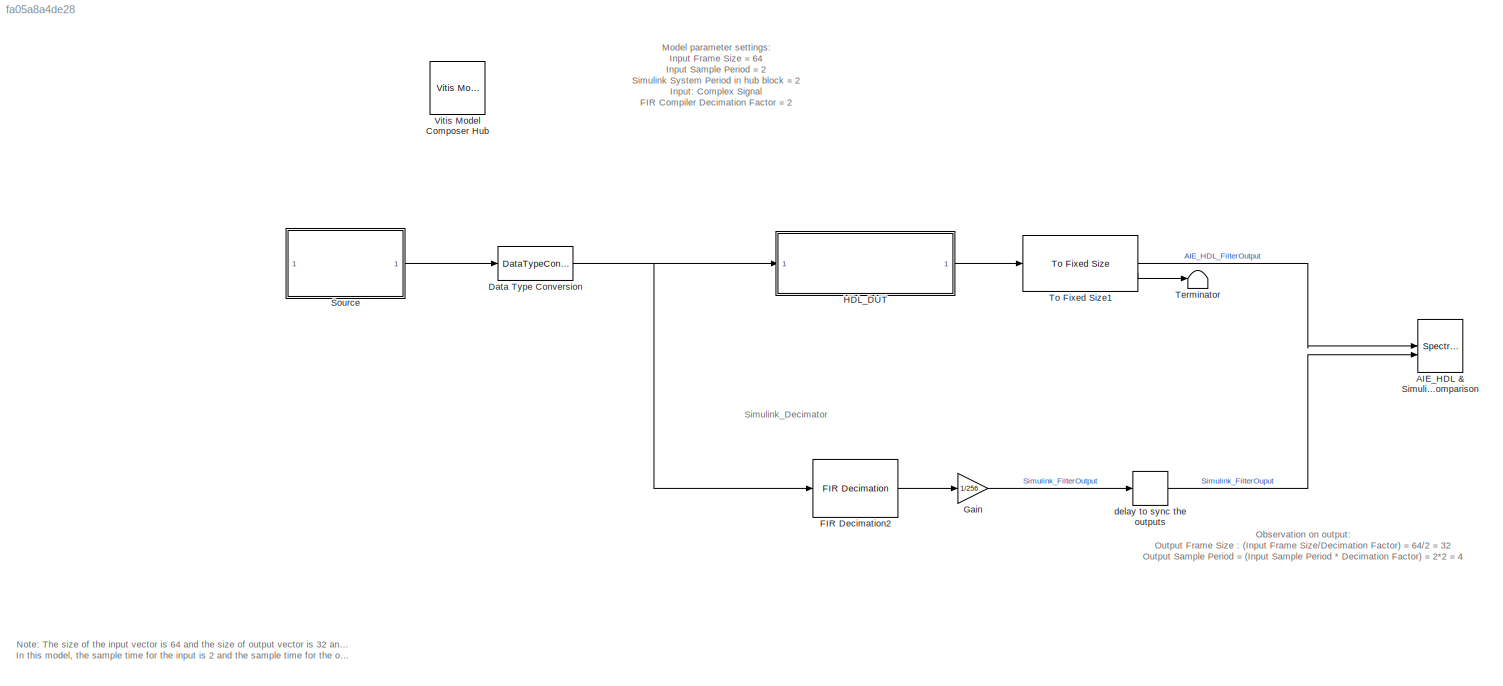
MODEL slx_fa05a8a4de28
KIND model
CONFIG AbsTol = auto
CONFIG EnableMultiTasking = off
CONFIG FixedStep = auto
CONFIG MaxStep = auto
CONFIG MinStep = auto
CONFIG RelTol = 1e-3
CONFIG SampleTimeConstraint = Unconstrained
CONFIG SolverName = VariableStepAuto
CONFIG StartTime = 0.0
CONFIG StopTime = 1000
BLOCK [SpectrumAnalyzer] AIE_HDL & Simulink Specrum_Comparison
  AllowFFTLengthLessThanSamplesPerUpdate = on
  AveragingMethod = Exponential
  ChannelNames = [""]
  DefaultConfigurationName = spbscopes.SpectrumAnalyzerBlockCfg
  NumInputPorts = 2
  ScopeSpecificationString = spbscopes.SpectrumAnalyzerBlockCfg('CurrentConfiguration', extmgr.ConfigurationSet(extmgr.Configuration('Core','General UI',true,'FigureColor',[0.12941     0.12941     0.12941]),extmgr.Configuration('Visuals','Spectrum',true,'Title','','YLabel','','MinYLim','-16.0622','MaxYLim','68.9529','Legend',true,'AxesProperties',struct('XGrid',{'on','on'},'YGrid',{'on','on'},'ZGrid',{'on','on'},'Color',{[0  ...<+2422ch>
  ShowLegend = on
  WasSavedAsWebScope = on
BLOCK [DataTypeConversion] Data Type Conversion
  OutDataTypeStr = int32
  RndMeth = Floor
  SaturateOnIntegerOverflow = off
BLOCK [Reference] FIR Decimation2  REF=dspmlti4/FIR
Decimation
  SourceBlock = dspmlti4/FIR\nDecimation
  SourceType = FIR Decimation
  UserDataPersistent = on
BLOCK [Gain] Gain
  Gain = 1/256
  OutDataTypeStr = Inherit: Same as input
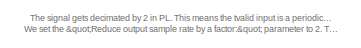
[diagram: HDL_DUT - part 1/3, top center region]
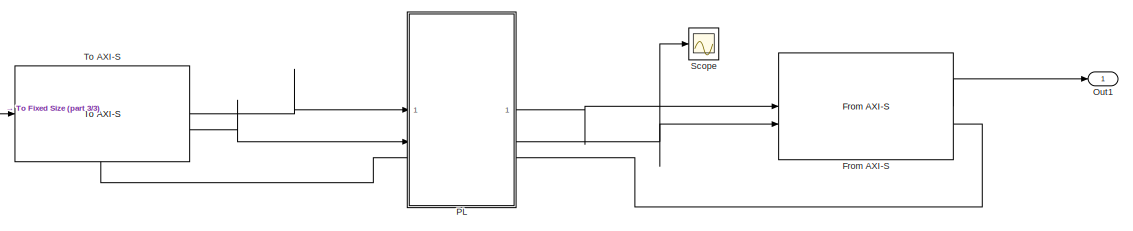
[diagram: HDL_DUT - part 2/3, bottom center region]
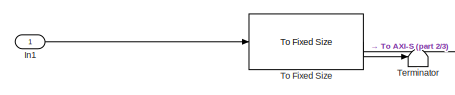
[diagram: HDL_DUT - part 3/3, bottom left region]
BLOCK [SubSystem] HDL_DUT
BLOCK [Reference] HDL_DUT/From AXI-S  REF=aieUtilities/From AXI-S
  SourceBlock = aieUtilities/From AXI-S
  SourceType = From AXI-S
BLOCK [Inport] HDL_DUT/In1
BLOCK [Outport] HDL_DUT/Out1
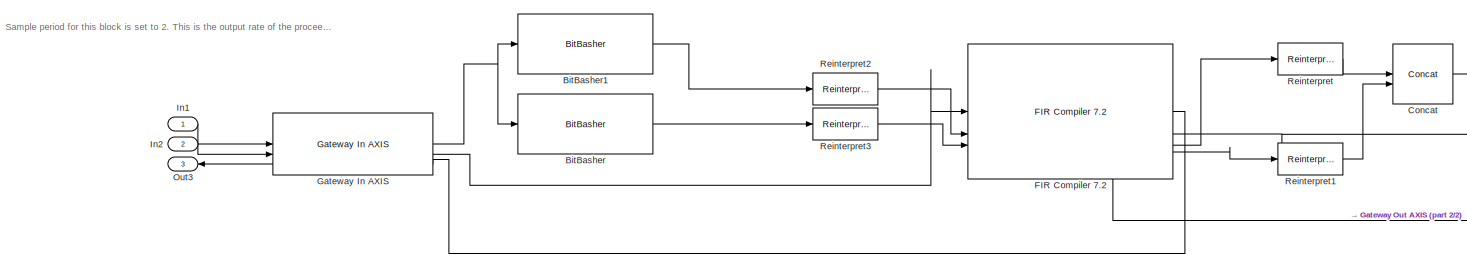
[diagram: HDL_DUT/PL - part 1/2, most of the canvas]
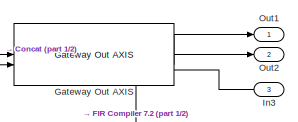
[diagram: HDL_DUT/PL - part 2/2, middle right region]
BLOCK [SubSystem] HDL_DUT/PL
  PortSchema = {"entries":[{"content":{"sides":[{"content":{"connectorIds":["In1","In2","Out3"]},"type":"ConnectorPlacement.EquallySpacedRectSide","uuid":"b9240e68-8c33-49ba-b00e-74953cef8815"},{"content":{"connectorIds":["Out1","Out2","In3"],"side":"RIGHT"},"type":"ConnectorPlacement.EquallySpacedRectSide","uuid":"ae9f69ab-13df-4ed6-8e03-b2ffeca92de6"},{"content":{"side":"TOP"},"type":"ConnectorPlacement.Equall...<+248ch>
BLOCK [Reference] HDL_DUT/PL/BitBasher  REF=hdlBasic/BitBasher
  SourceBlock = hdlBasic/BitBasher
  SourceType = BitBasher Block
BLOCK [Reference] HDL_DUT/PL/BitBasher1  REF=hdlBasic/BitBasher
  SourceBlock = hdlBasic/BitBasher
  SourceType = BitBasher Block
BLOCK [Reference] HDL_DUT/PL/Concat  REF=hdlBasic/Concat
  SourceBlock = hdlBasic/Concat
  SourceType = Bus Concatenator Block
BLOCK [Reference] HDL_DUT/PL/FIR Compiler 7.2  REF=hdlDSPIP/FIR Compiler 7.2 
  SourceBlock = hdlDSPIP/FIR Compiler 7.2
  SourceType = FIR Compiler 7.2 Block
BLOCK [Reference] HDL_DUT/PL/Gateway In AXIS  REF=hdlUtilities/Gateway In AXIS
  SourceBlock = hdlUtilities/Gateway In AXIS
  SourceType = Gateway In AXIS
BLOCK [Reference] HDL_DUT/PL/Gateway Out AXIS  REF=hdlUtilities/Gateway Out AXIS
  SourceBlock = hdlUtilities/Gateway Out AXIS
  SourceType = Gateway Out AXIS
BLOCK [Inport] HDL_DUT/PL/In1
BLOCK [Inport] HDL_DUT/PL/In2
  Port = 2
BLOCK [Inport] HDL_DUT/PL/In3
  Port = 3
BLOCK [Outport] HDL_DUT/PL/Out1
BLOCK [Outport] HDL_DUT/PL/Out2
  Port = 2
BLOCK [Outport] HDL_DUT/PL/Out3
  Port = 3
BLOCK [Reference] HDL_DUT/PL/Reinterpret  REF=hdlBasic/Reinterpret
  SourceBlock = hdlBasic/Reinterpret
  SourceType = Type Reinterpreter Block
BLOCK [Reference] HDL_DUT/PL/Reinterpret1  REF=hdlBasic/Reinterpret
  SourceBlock = hdlBasic/Reinterpret
  SourceType = Type Reinterpreter Block
BLOCK [Reference] HDL_DUT/PL/Reinterpret2  REF=hdlBasic/Reinterpret
  SourceBlock = hdlBasic/Reinterpret
  SourceType = Type Reinterpreter Block
BLOCK [Reference] HDL_DUT/PL/Reinterpret3  REF=hdlBasic/Reinterpret
  SourceBlock = hdlBasic/Reinterpret
  SourceType = Type Reinterpreter Block
BLOCK [Scope] HDL_DUT/Scope
  Floating = off
  NumInputPorts = 1
  ScopeSpecificationString = Simulink.scopes.TimeScopeBlockCfg('CurrentConfiguration', extmgr.ConfigurationSet(extmgr.Configuration('Core','General UI',true,'DisplayFullSourceName',false,'ShowMainToolbar',true),extmgr.Configuration('Sources','WiredSimulink',true,'DataLogging',false,'DataLoggingVariableName','ScopeData1','DataLoggingLimitDataPoints',false,'DataLoggingMaxPoints','5000','DataLoggingDecimateData',false,'DataLoggi...<+2020ch>
BLOCK [Terminator] HDL_DUT/Terminator
BLOCK [Reference] HDL_DUT/To AXI-S  REF=aieUtilities/To AXI-S
  SourceBlock = aieUtilities/To AXI-S
  SourceType = To AXI-S
BLOCK [Reference] HDL_DUT/To Fixed Size  REF=aieUtilities/To Fixed Size
  SourceBlock = aieUtilities/To Fixed Size
  SourceType = To Fixed Size
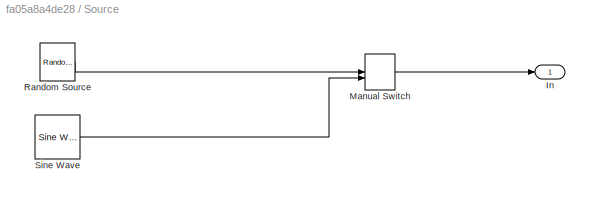
BLOCK [SubSystem] Source
BLOCK [Outport] Source/In
BLOCK [ManualSwitch] Source/Manual Switch
  CurrentSetting = 0
BLOCK [Reference] Source/Random Source  REF=dspobslib/Random
Source
  SourceBlock = dspobslib/Random\nSource
  SourceType = Random Source Obsolete
  UserDataPersistent = on
BLOCK [Reference] Source/Sine Wave  REF=dspsrcs4/Sine Wave
  SourceBlock = dspsrcs4/Sine Wave
  SourceType = Sine Wave
BLOCK [Terminator] Terminator
BLOCK [Reference] To Fixed Size1  REF=aieUtilities/To Fixed Size
  SourceBlock = aieUtilities/To Fixed Size
  SourceType = To Fixed Size
BLOCK [Reference] Vitis Model Composer Hub  REF=vmcUtilities/Vitis Model Composer Hub
  SourceBlock = vmcUtilities/Vitis Model Composer Hub
  SourceType = VMC Hub
  Tag = genX
  UserDataPersistent = on
BLOCK [Delay] delay to sync the outputs
  DelayLength = 64
  InputPortMap = u0
  InputProcessing = Columns as channels (frame based)
ANNOTATION (root): Model parameter settings: Input Frame Size = 64 Input Sample Period = 2 Simulink System Period in hub block = 2 Input: Complex Signal FIR Compiler Decimation Factor = 2 Hardware Oversampling Specification Format: Output Sampling Period
ANNOTATION (root): Observation on output: Output Frame Size : (Input Frame Size/Decimation Factor) = 64/2 = 32 Output Sample Period = (Input Sample Period * Decimation Factor) = 2*2 = 4
ANNOTATION (root): Simulink_Decimator
ANNOTATION (root): Note: The size of the input vector is 64 and the size of output vector is 32 and both have the same sample rate color in Simulink (Update the desgin using Ctrl-D to see the signal size and sample time colors) In this model, the sample time for the input is 2 and the sample time for the output is 4. Simulink Timing Legend shows the period for the frames. For example the period of the signal in blue...<+86ch>
ANNOTATION HDL_DUT: The signal gets decimated by 2 in PL. This means the tvalid input is a periodic signal that toggles between zero and one. We set the " Reduce output sample rate by a factor: " parameter to 2. This does not affect the results numerically, but allows for an easier monitoring and visualization of the signals.
ANNOTATION HDL_DUT/PL: Sample period for this block is set to 2. This is the output rate of the proceeding AI Engine decimator filter.
NET Data Type Conversion:1 -> FIR Decimation2:1, HDL_DUT:1
LINE FIR Decimation2:1 -> Gain:1
LINE Gain:1 -> delay to sync the outputs:1
LINE HDL_DUT/From AXI-S:1 -> HDL_DUT/Out1:1
LINE HDL_DUT/From AXI-S:2 -> HDL_DUT/PL:3
LINE HDL_DUT/In1:1 -> HDL_DUT/To Fixed Size:1
LINE HDL_DUT/PL/BitBasher1:1 -> HDL_DUT/PL/Reinterpret2:1
LINE HDL_DUT/PL/BitBasher:1 -> HDL_DUT/PL/Reinterpret3:1
LINE HDL_DUT/PL/Concat:1 -> HDL_DUT/PL/Gateway Out AXIS:1
LINE HDL_DUT/PL/FIR Compiler 7.2:1 -> HDL_DUT/PL/Gateway In AXIS:3
LINE HDL_DUT/PL/FIR Compiler 7.2:2 -> HDL_DUT/PL/Gateway Out AXIS:2
LINE HDL_DUT/PL/FIR Compiler 7.2:3 -> HDL_DUT/PL/Reinterpret:1
LINE HDL_DUT/PL/FIR Compiler 7.2:4 -> HDL_DUT/PL/Reinterpret1:1
NET HDL_DUT/PL/Gateway In AXIS:1 -> HDL_DUT/PL/BitBasher1:1, HDL_DUT/PL/BitBasher:1
LINE HDL_DUT/PL/Gateway In AXIS:2 -> HDL_DUT/PL/FIR Compiler 7.2:1
LINE HDL_DUT/PL/Gateway In AXIS:3 -> HDL_DUT/PL/Out3:1
LINE HDL_DUT/PL/Gateway Out AXIS:1 -> HDL_DUT/PL/Out1:1
LINE HDL_DUT/PL/Gateway Out AXIS:2 -> HDL_DUT/PL/Out2:1
LINE HDL_DUT/PL/Gateway Out AXIS:3 -> HDL_DUT/PL/FIR Compiler 7.2:4
LINE HDL_DUT/PL/In1:1 -> HDL_DUT/PL/Gateway In AXIS:1
LINE HDL_DUT/PL/In2:1 -> HDL_DUT/PL/Gateway In AXIS:2
LINE HDL_DUT/PL/In3:1 -> HDL_DUT/PL/Gateway Out AXIS:3
LINE HDL_DUT/PL/Reinterpret1:1 -> HDL_DUT/PL/Concat:2
LINE HDL_DUT/PL/Reinterpret2:1 -> HDL_DUT/PL/FIR Compiler 7.2:2
LINE HDL_DUT/PL/Reinterpret3:1 -> HDL_DUT/PL/FIR Compiler 7.2:3
LINE HDL_DUT/PL/Reinterpret:1 -> HDL_DUT/PL/Concat:1
LINE HDL_DUT/PL:1 -> HDL_DUT/From AXI-S:1
NET HDL_DUT/PL:2 -> HDL_DUT/From AXI-S:2, HDL_DUT/Scope:1
LINE HDL_DUT/PL:3 -> HDL_DUT/To AXI-S:2
LINE HDL_DUT/To AXI-S:1 -> HDL_DUT/PL:1
LINE HDL_DUT/To AXI-S:2 -> HDL_DUT/PL:2
LINE HDL_DUT/To Fixed Size:1 -> HDL_DUT/To AXI-S:1
LINE HDL_DUT/To Fixed Size:2 -> HDL_DUT/Terminator:1
LINE HDL_DUT:1 -> To Fixed Size1:1
LINE Source/Manual Switch:1 -> Source/In:1
LINE Source/Random Source:1 -> Source/Manual Switch:1
LINE Source/Sine Wave:1 -> Source/Manual Switch:2
LINE Source:1 -> Data Type Conversion:1
LINE To Fixed Size1:1 -> AIE_HDL & Simulink Specrum_Comparison:1
LINE To Fixed Size1:2 -> Terminator:1
LINE delay to sync the outputs:1 -> AIE_HDL & Simulink Specrum_Comparison:2
note: NET lines group one-source signal fan-out (src -> all destinations, sorted); 1:1 wires keep LINE
